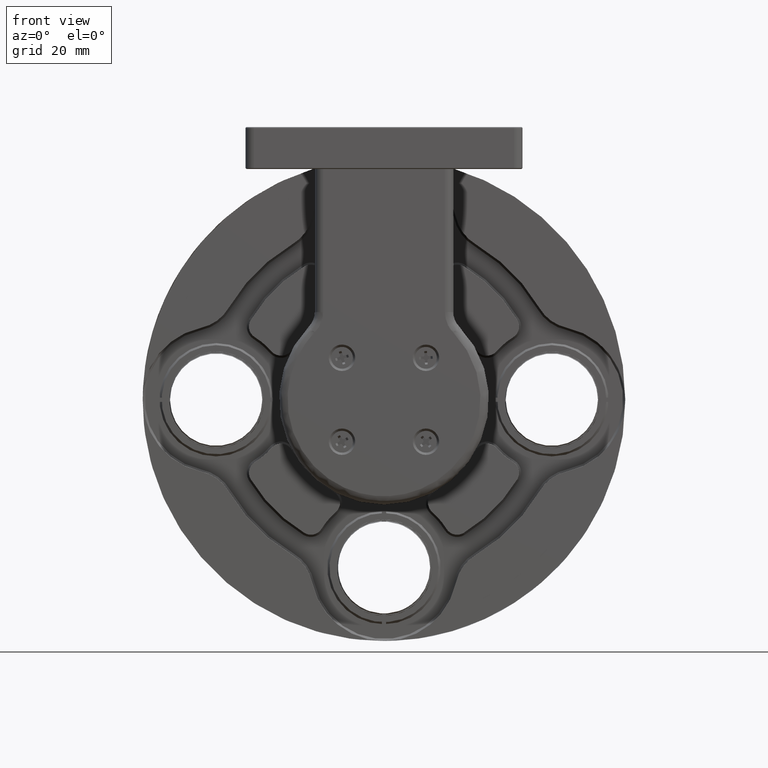
[diagram: clean part render]
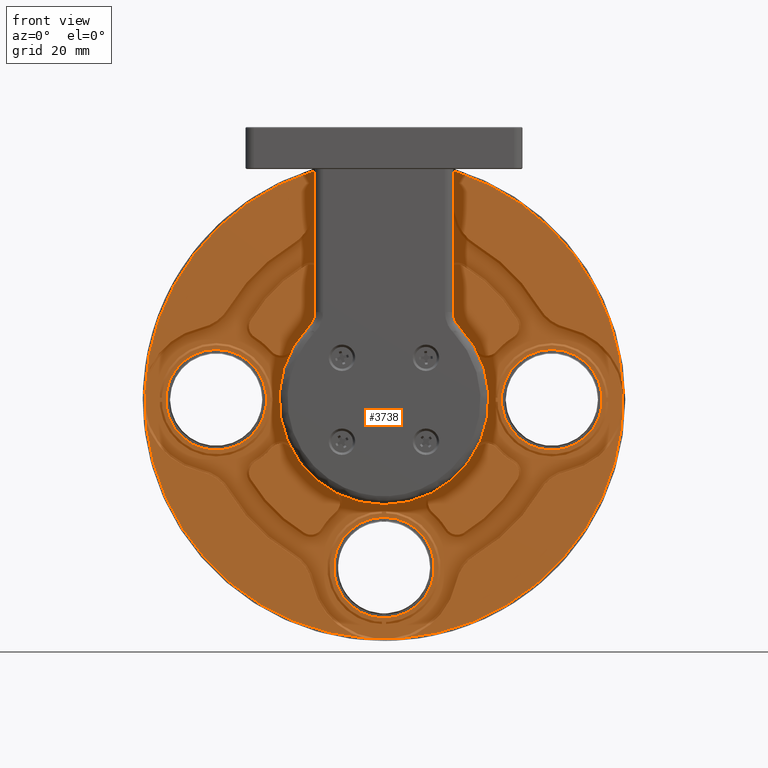
[diagram: same view with one face highlighted and labeled with its STEP entity id]
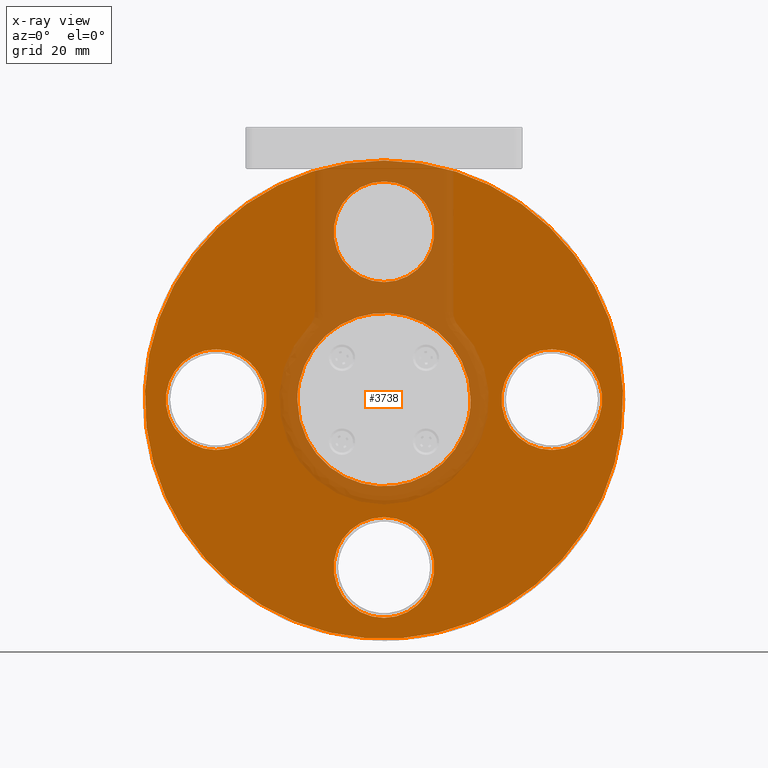
[diagram: x-ray of the same camera — body ghosted, the highlighted face saturated]
A machine part, front view. The second image highlights one B-rep face of the part: STEP entity #3738.
The next image is the same camera in x-ray: the body ghosted, the highlighted face saturated — about 18% of this face is hidden behind the body in this view.
In plain terms, the highlighted planar face has unit normal (-0, 1, 0).
Its self-contained STEP definition (entity closure, byte-faithful):
#80 = CARTESIAN_POINT ( 'NONE',  ( -52.37910232785824149, 31.06348211055967212, 65.58410770328258366 ) ) ;
#82 = CARTESIAN_POINT ( 'NONE',  ( -43.42098259129482329, 31.06348211055968633, 87.33269904637371894 ) ) ;
#167 = CARTESIAN_POINT ( 'NONE',  ( -51.50195343994418806, 31.06348211055968278, 62.67182695956506677 ) ) ;
#169 = CARTESIAN_POINT ( 'NONE',  ( -51.36354743430855052, 31.06348211055967568, 77.68221559721696678 ) ) ;
#249 = CARTESIAN_POINT ( 'NONE',  ( -52.54961922213911407, 31.06348211055967923, 66.51432434059302068 ) ) ;
#251 = CARTESIAN_POINT ( 'NONE',  ( -52.38743229577561067, 31.06348211055967212, 74.33191372698257737 ) ) ;
#277 = VERTEX_POINT ( 'NONE', #8290 ) ;
#344 = CARTESIAN_POINT ( 'NONE',  ( -25.14143976857161533, 31.06348211055967212, 50.59095122842351344 ) ) ;
#347 = CARTESIAN_POINT ( 'NONE',  ( -40.44548976020367803, 31.06348211055968278, 88.94334276734261380 ) ) ;
#413 = ORIENTED_EDGE ( 'NONE', *, *, #12787, .T. ) ;
#436 = CARTESIAN_POINT ( 'NONE',  ( -49.43189447517796964, 31.06348211055967568, 81.37287159087907185 ) ) ;
#619 = CARTESIAN_POINT ( 'NONE',  ( -24.63504569474608985, 31.06348211055967923, 50.78382247998092680 ) ) ;
#650 = EDGE_CURVE ( 'NONE', #14627, #11547, #12902, .T. ) ;
#703 = CARTESIAN_POINT ( 'NONE',  ( -11.54565927654611990, 31.06348211055967568, 70.00000000004308731 ) ) ;
#892 = FACE_BOUND ( 'NONE', #1900, .T. ) ;
#1079 = CARTESIAN_POINT ( 'NONE',  ( -34.86393523643538117, 31.06348211055967568, 90.48124029516232270 ) ) ;
#1160 = PLANE ( 'NONE',  #13934 ) ;
#1167 = CARTESIAN_POINT ( 'NONE',  ( -12.96483231010009973, 31.06348211055968278, 77.52326470838384864 ) ) ;
#1249 = CARTESIAN_POINT ( 'NONE',  ( -13.68442713511874587, 31.06348211055968633, 79.19867723878651589 ) ) ;
#1340 = CARTESIAN_POINT ( 'NONE',  ( -11.88324930447253891, 31.06348211055967568, 73.71871740754845348 ) ) ;
#1406 = CARTESIAN_POINT ( 'NONE',  ( 7.804340723453886852, 31.06348211055967568, 70.00000000008360246 ) ) ;
#1422 = CARTESIAN_POINT ( 'NONE',  ( -50.70689141802483135, 31.06348211055968278, 60.80132276129996427 ) ) ;
#1426 = CARTESIAN_POINT ( 'NONE',  ( -41.39433651544555204, 31.06348211055967212, 88.51123214137186324 ) ) ;
#1505 = CARTESIAN_POINT ( 'NONE',  ( -51.45681931341565019, 31.06348211055967568, 62.55473035221240252 ) ) ;
#1509 = CARTESIAN_POINT ( 'NONE',  ( -45.78959968094930844, 31.06348211055966857, 85.60951709965540601 ) ) ;
#1591 = CARTESIAN_POINT ( 'NONE',  ( -51.13900204394980165, 31.06348211055967923, 61.75016951645639551 ) ) ;
#1594 = CARTESIAN_POINT ( 'NONE',  ( -51.28166679094842095, 31.06348211055966502, 77.88419803250691587 ) ) ;
#1674 = CARTESIAN_POINT ( 'NONE',  ( -27.77976697984040300, 31.06348211055967212, 49.81655694868400275 ) ) ;
#1676 = CARTESIAN_POINT ( 'NONE',  ( -52.49732404954174569, 31.06348211055966857, 73.77694002405294782 ) ) ;
#1717 = CIRCLE ( 'NONE', #17038, 11.99999999999999645 ) ;
#1767 = CARTESIAN_POINT ( 'NONE',  ( -52.14960179288765829, 31.06348211055968633, 64.60988891499198417 ) ) ;
#1770 = CARTESIAN_POINT ( 'NONE',  ( -51.96524392881534737, 31.06348211055966857, 76.03130272879397467 ) ) ;
#1788 = DIRECTION ( 'NONE',  ( -3.017624609044238475E-28, -1.000000000000000000, 1.445602896647339656E-16 ) ) ;
#1856 = CARTESIAN_POINT ( 'NONE',  ( -21.04208804655492315, 31.06348211055967923, 52.62104705646409286 ) ) ;
#1900 = EDGE_LOOP ( 'NONE', ( #4783 ) ) ;
#1937 = EDGE_LOOP ( 'NONE', ( #2494 ) ) ;
#1938 = CARTESIAN_POINT ( 'NONE',  ( -15.61936436537409811, 31.06348211055967212, 57.67613112093980732 ) ) ;
#2117 = CARTESIAN_POINT ( 'NONE',  ( -13.06037709094387189, 31.06348211055966857, 62.23691517990090460 ) ) ;
#2402 = CARTESIAN_POINT ( 'NONE',  ( -12.24171676023502897, 31.06348211055966857, 75.39011108512627857 ) ) ;
#2483 = FACE_BOUND ( 'NONE', #1937, .T. ) ;
#2492 = CARTESIAN_POINT ( 'NONE',  ( -14.58435044487283072, 31.06348211055967212, 80.78515270216342969 ) ) ;
#2494 = ORIENTED_EDGE ( 'NONE', *, *, #11230, .T. ) ;
#2582 = CARTESIAN_POINT ( 'NONE',  ( -11.86565859995081418, 31.06348211055967923, 73.62164177425739808 ) ) ;
#2657 = FACE_BOUND ( 'NONE', #9472, .T. ) ;
#2664 = CARTESIAN_POINT ( 'NONE',  ( -11.58875229432181442, 31.06348211055967568, 71.57471009347500512 ) ) ;
#2743 = CARTESIAN_POINT ( 'NONE',  ( -39.17430035263629406, 31.06348211055966857, 50.55340569435595910 ) ) ;
#2747 = CARTESIAN_POINT ( 'NONE',  ( -11.71444026283427142, 31.06348211055967568, 72.66839097873976527 ) ) ;
#2834 = CARTESIAN_POINT ( 'NONE',  ( -49.66814122724328939, 31.06348211055968278, 58.99349411439198576 ) ) ;
#2837 = CARTESIAN_POINT ( 'NONE',  ( -52.84565927654612238, 31.06348211055967212, 71.26323321395167909 ) ) ;
#2856 = VERTEX_POINT ( 'NONE', #8201 ) ;
#2900 = DIRECTION ( 'NONE',  ( 0.000000000000000000, -1.000000000000000000, 0.000000000000000000 ) ) ;
#2921 = CARTESIAN_POINT ( 'NONE',  ( -29.52738331655619675, 31.06348211055967568, 49.51875970484310585 ) ) ;
#3006 = CARTESIAN_POINT ( 'NONE',  ( -51.79998384957271895, 31.06348211055967568, 63.49660001810040910 ) ) ;
#3096 = CARTESIAN_POINT ( 'NONE',  ( -36.24087926206204457, 31.06348211055967212, 49.74978264791351279 ) ) ;
#3190 = CARTESIAN_POINT ( 'NONE',  ( -14.52992510541154481, 31.06348211055968633, 59.28404006073679966 ) ) ;
#3279 = CARTESIAN_POINT ( 'NONE',  ( -13.22718598571316306, 31.06348211055967212, 61.83453882532784007 ) ) ;
#3738 = ADVANCED_FACE ( 'NONE', ( #5329, #2657, #13076, #2483, #892, #17146 ), #1160, .T. ) ;
#3739 = CARTESIAN_POINT ( 'NONE',  ( -32.82701047997540655, 31.06348211055968278, 90.65001621443843760 ) ) ;
#3824 = CARTESIAN_POINT ( 'NONE',  ( -11.54565927654611990, 31.06348211055967568, 70.00000000004308731 ) ) ;
#3882 = EDGE_CURVE ( 'NONE', #17353, #17353, #1717, .T. ) ;
#3913 = CARTESIAN_POINT ( 'NONE',  ( -14.81670633301440354, 31.06348211055968278, 81.15357122999529338 ) ) ;
#4001 = CARTESIAN_POINT ( 'NONE',  ( -28.39696285378697027, 31.06348211055967923, 90.29760607832922403 ) ) ;
#4081 = CARTESIAN_POINT ( 'NONE',  ( -38.22696200537646405, 31.06348211055966502, 50.23041534773235384 ) ) ;
#4083 = CARTESIAN_POINT ( 'NONE',  ( -29.67973840391180929, 31.06348211055966502, 90.53505283892513944 ) ) ;
#4102 = VERTEX_POINT ( 'NONE', #13624 ) ;
#4165 = CARTESIAN_POINT ( 'NONE',  ( -36.03548859304074625, 31.06348211055967568, 49.71013492866024563 ) ) ;
#4168 = CARTESIAN_POINT ( 'NONE',  ( -44.68847016703465869, 31.06348211055967568, 86.50408947092722656 ) ) ;
#4257 = CARTESIAN_POINT ( 'NONE',  ( -33.45836168342874828, 31.06348211055966502, 49.35003242886855901 ) ) ;
#4259 = CARTESIAN_POINT ( 'NONE',  ( -35.81728248005166648, 31.06348211055967568, 90.33000411266282015 ) ) ;
#4340 = CARTESIAN_POINT ( 'NONE',  ( -28.57403607302433812, 31.06348211055967212, 49.66999588733803250 ) ) ;
#4394 = CARTESIAN_POINT ( 'NONE',  ( -11.54565927654611990, 31.06348211055967568, 70.00000000004308731 ) ) ;
#4428 = CARTESIAN_POINT ( 'NONE',  ( -39.87787487376458273, 31.06348211055967568, 50.83211184223907964 ) ) ;
#4432 = CARTESIAN_POINT ( 'NONE',  ( -52.47382160988637168, 31.06348211055967923, 73.90150216035837616 ) ) ;
#4520 = CARTESIAN_POINT ( 'NONE',  ( -20.97033596179335646, 31.06348211055967212, 52.66730095362948560 ) ) ;
#4522 = CARTESIAN_POINT ( 'NONE',  ( -42.45903504892691416, 31.06348211055968633, 87.92497181243987825 ) ) ;
#4698 = CARTESIAN_POINT ( 'NONE',  ( -14.00407106829386805, 31.06348211055966857, 60.18432186868405154 ) ) ;
#4783 = ORIENTED_EDGE ( 'NONE', *, *, #10927, .T. ) ;
#4875 = CARTESIAN_POINT ( 'NONE',  ( -11.94544192446623221, 31.06348211055967212, 65.95478001446238636 ) ) ;
#5074 = CARTESIAN_POINT ( 'NONE',  ( -30.93295686981691972, 31.06348211055967568, 90.64996757112314185 ) ) ;
#5253 = CARTESIAN_POINT ( 'NONE',  ( -12.93449923968078785, 31.06348211055967212, 77.44526964780384048 ) ) ;
#5329 = FACE_BOUND ( 'NONE', #14688, .T. ) ;
#5337 = CARTESIAN_POINT ( 'NONE',  ( -12.01221622525138599, 31.06348211055967212, 74.41589229678497475 ) ) ;
#5418 = CARTESIAN_POINT ( 'NONE',  ( -43.79209871737196380, 31.06348211055968278, 52.91334437409328473 ) ) ;
#5422 = CARTESIAN_POINT ( 'NONE',  ( -20.82278768567562111, 31.06348211055967568, 87.23623519863687648 ) ) ;
#5502 = CARTESIAN_POINT ( 'NONE',  ( -39.95874409665006510, 31.06348211055967212, 50.86471781439843909 ) ) ;
#5504 = CARTESIAN_POINT ( 'NONE',  ( -48.01452739121162949, 31.06348211055967212, 83.30722901879786946 ) ) ;
#5577 = DIRECTION ( 'NONE',  ( 0.000000000000000000, 0.000000000000000000, -1.000000000000000000 ) ) ;
#5590 = CARTESIAN_POINT ( 'NONE',  ( -35.99435569929946865, 31.06348211055967212, 49.70239392166880066 ) ) ;
#5593 = CARTESIAN_POINT ( 'NONE',  ( -49.13200593556990015, 31.06348211055966857, 81.81695355973161554 ) ) ;
#5677 = CARTESIAN_POINT ( 'NONE',  ( -51.60470804811962608, 31.06348211055967212, 62.94578049201651737 ) ) ;
#5771 = CARTESIAN_POINT ( 'NONE',  ( -24.86748623611599385, 31.06348211055967923, 50.69370583660035123 ) ) ;
#5773 = CARTESIAN_POINT ( 'NONE',  ( -52.48552434788599186, 31.06348211055968278, 73.83982931649205739 ) ) ;
#5858 = CARTESIAN_POINT ( 'NONE',  ( -22.99698203778910965, 31.06348211055967212, 51.48876785854248084 ) ) ;
#5860 = CARTESIAN_POINT ( 'NONE',  ( -39.24987878454015089, 31.06348211055967923, 89.40904877158102693 ) ) ;
#5877 = CARTESIAN_POINT ( 'NONE',  ( -72.19565927654610960, 31.06348211055967568, 69.99999999991607069 ) ) ;
#6039 = CARTESIAN_POINT ( 'NONE',  ( -21.41050657439556204, 31.06348211055967212, 52.38869116831349970 ) ) ;
#6183 = ORIENTED_EDGE ( 'NONE', *, *, #3882, .T. ) ;
#6209 = CARTESIAN_POINT ( 'NONE',  ( -15.25931261749875922, 31.06348211055967568, 58.18304644028667383 ) ) ;
#6411 = CARTESIAN_POINT ( 'NONE',  ( -13.25231650917178960, 31.06348211055968989, 78.24983048359298721 ) ) ;
#6533 = ORIENTED_EDGE ( 'NONE', *, *, #8771, .T. ) ;
#6670 = CARTESIAN_POINT ( 'NONE',  ( -24.51344367932071222, 31.06348211055968278, 89.16788815775747423 ) ) ;
#6706 = AXIS2_PLACEMENT_3D ( 'NONE', #16376, #13640, #13898 ) ;
#6756 = CARTESIAN_POINT ( 'NONE',  ( -12.59133470354234419, 31.06348211055966857, 76.50339998198820979 ) ) ;
#6839 = CARTESIAN_POINT ( 'NONE',  ( -49.80696810824186116, 31.06348211055967568, 59.21484729787433565 ) ) ;
#6841 = CARTESIAN_POINT ( 'NONE',  ( -50.91882415723354427, 31.06348211055967212, 78.72265004525353049 ) ) ;
#6924 = CARTESIAN_POINT ( 'NONE',  ( -44.51952815563753063, 31.06348211055967212, 53.42370508886220648 ) ) ;
#6926 = CARTESIAN_POINT ( 'NONE',  ( -51.16413256738625392, 31.06348211055967212, 78.16546117467854060 ) ) ;
#6948 = VERTEX_POINT ( 'NONE', #7033 ) ;
#6991 = AXIS2_PLACEMENT_3D ( 'NONE', #10831, #2900, #13837 ) ;
#7011 = CARTESIAN_POINT ( 'NONE',  ( -52.67687829025796731, 31.06348211055967212, 67.33160902129279179 ) ) ;
#7033 = CARTESIAN_POINT ( 'NONE',  ( 7.804340723453886852, 31.06348211055967568, 58.00000000008360956 ) ) ;
#7101 = CARTESIAN_POINT ( 'NONE',  ( -26.80554819155855029, 31.06348211055967568, 50.04605748365171536 ) ) ;
#7195 = CARTESIAN_POINT ( 'NONE',  ( -24.67239456817200960, 31.06348211055967212, 50.76917303355134692 ) ) ;
#7197 = CARTESIAN_POINT ( 'NONE',  ( -42.98081197875899306, 31.06348211055967923, 87.61130883164902627 ) ) ;
#7285 = CARTESIAN_POINT ( 'NONE',  ( -12.42607462430658494, 31.06348211055967568, 63.96869727107715420 ) ) ;
#7370 = CARTESIAN_POINT ( 'NONE',  ( -13.01093497763312357, 31.06348211055967568, 62.35993708032054172 ) ) ;
#7464 = CARTESIAN_POINT ( 'NONE',  ( -13.02777111878484817, 31.06348211055967923, 62.31778440278401376 ) ) ;
#7549 = CARTESIAN_POINT ( 'NONE',  ( -11.89399450355049659, 31.06348211055967923, 66.22305997594753535 ) ) ;
#7602 = B_SPLINE_CURVE_WITH_KNOTS ( 'NONE', 3,
 ( #10763, #17508, #16173, #7011, #13689, #249, #9515, #13773, #13601, #16515, #80, #1767, #3006, #5677, #167, #1505, #11197, #8268, #1591, #1422, #16342, #6839, #2834, #16603, #12181, #12270, #16424, #9861, #13951, #6924, #14931, #5418, #15016, #8531, #15280, #12358, #17589, #16260, #9600, #5502, #4428, #10852, #2743, #4081, #8179, #10937, #3096, #8351, #4165, #5590, #15189, #11021, #4257, #9690, #15106, #2921, #12444, #11108, #4340, #9770, #8442, #13860, #1674, #7101, #12536, #344, #5771, #10131, #7195, #619, #16781, #5858, #14128, #6039, #15458, #1856, #4520, #11556, #14386, #15636, #9954, #1938, #6209, #8976, #10040, #11381, #3190, #4698, #14042, #3279, #14216, #2117, #7464, #7370, #10213, #7285, #15369, #12806, #4875, #12892, #16958, #11466, #7549, #8620, #11287, #703 ),
 .UNSPECIFIED., .F., .F.,
 ( 4, 1, 1, 1, 1, 1, 2, 2, 1, 1, 1, 1, 2, 2, 1, 1, 1, 2, 2, 2, 1, 1, 1, 2, 2, 1, 1, 1, 1, 2, 2, 1, 1, 1, 1, 1, 2, 2, 2, 1, 1, 1, 1, 1, 2, 2, 1, 1, 1, 1, 2, 2, 1, 1, 1, 2, 2, 2, 1, 1, 1, 2, 2, 1, 1, 1, 1, 2, 2, 1, 1, 1, 1, 1, 2, 2, 4 ),
 ( 0.000000000000000000, 0.03125000000000240086, 0.04687500000000327516, 0.05468750000000368455, 0.05859375000000387190, 0.06054687500000392741, 0.06152343750000392741, 0.06250000000000392741, 0.09375000000000574540, 0.1093750000000066475, 0.1171875000000073691, 0.1210937500000077161, 0.1230468750000078410, 0.1250000000000079659, 0.1562500000000065503, 0.1718750000000059397, 0.1796875000000056066, 0.1835937500000053846, 0.1875000000000051625, 0.2500000000000039413, 0.2812500000000033307, 0.2968750000000030531, 0.3046875000000030531, 0.3085937500000029976, 0.3125000000000029421, 0.3437500000000010547, 0.3593750000000000555, 0.3671874999999996669, 0.3710937499999996669, 0.3730468749999996114, 0.3749999999999996114, 0.4062499999999957256, 0.4218749999999940048, 0.4296874999999931166, 0.4335937499999925060, 0.4355468749999920619, 0.4365234374999919509, 0.4374999999999918399, 0.4999999999999955591, 0.5312499999999976685, 0.5468749999999985567, 0.5546874999999992228, 0.5585937499999995559, 0.5605468749999997780, 0.5615234374999998890, 0.5624999999999998890, 0.5937500000000016653, 0.6093750000000024425, 0.6171875000000028866, 0.6210937500000032196, 0.6230468750000032196, 0.6250000000000032196, 0.6562500000000023315, 0.6718750000000017764, 0.6796875000000015543, 0.6835937500000015543, 0.6875000000000015543, 0.7499999999999996669, 0.7812499999999988898, 0.7968749999999982236, 0.8046874999999980016, 0.8085937499999980016, 0.8124999999999978906, 0.8437499999999997780, 0.8593750000000006661, 0.8671875000000008882, 0.8710937500000011102, 0.8730468750000011102, 0.8750000000000011102, 0.9062500000000002220, 0.9218749999999997780, 0.9296874999999995559, 0.9335937499999997780, 0.9355468749999998890, 0.9365234375000000000, 0.9375000000000001110, 1.000000000000000000 ),
 .UNSPECIFIED. ) ;
#7740 = DIRECTION ( 'NONE',  ( -3.488278094132890012E-29, 1.000000000000000000, 0.000000000000000000 ) ) ;
#7836 = CARTESIAN_POINT ( 'NONE',  ( -28.15043929099181952, 31.06348211055968633, 90.25021735207343454 ) ) ;
#7923 = CARTESIAN_POINT ( 'NONE',  ( -19.87179039734991903, 31.06348211055967212, 86.57629491105710429 ) ) ;
#8013 = CARTESIAN_POINT ( 'NONE',  ( -26.16435654755195728, 31.06348211055966857, 89.76958465221196093 ) ) ;
#8097 = CARTESIAN_POINT ( 'NONE',  ( -11.79613744236736750, 31.06348211055967568, 73.21353085950286754 ) ) ;
#8179 = CARTESIAN_POINT ( 'NONE',  ( -37.09799285121495416, 31.06348211055966146, 49.93533312788870404 ) ) ;
#8181 = CARTESIAN_POINT ( 'NONE',  ( -43.34923050655704202, 31.06348211055967568, 87.37895294352404107 ) ) ;
#8188 = AXIS2_PLACEMENT_3D ( 'NONE', #1406, #8337, #15003 ) ;
#8201 = CARTESIAN_POINT ( 'NONE',  ( -72.19565927654610960, 31.06348211055967568, 57.99999999991607780 ) ) ;
#8268 = CARTESIAN_POINT ( 'NONE',  ( -51.41183679656442962, 31.06348211055967212, 62.43938641819790547 ) ) ;
#8270 = CARTESIAN_POINT ( 'NONE',  ( -36.61155157327733889, 31.06348211055967568, 90.18344305132191607 ) ) ;
#8290 = CARTESIAN_POINT ( 'NONE',  ( -32.19565927654613091, 31.06348211055967568, 127.0000000000000000 ) ) ;
#8337 = DIRECTION ( 'NONE',  ( -3.017624609044238475E-28, -1.000000000000000000, 1.445602896647339656E-16 ) ) ;
#8351 = CARTESIAN_POINT ( 'NONE',  ( -36.09716143690889112, 31.06348211055967568, 49.72183766665993687 ) ) ;
#8442 = CARTESIAN_POINT ( 'NONE',  ( -28.47694730329126855, 31.06348211055967212, 49.68758902244144338 ) ) ;
#8531 = CARTESIAN_POINT ( 'NONE',  ( -43.56853086742370351, 31.06348211055968278, 52.76376480136661229 ) ) ;
#8534 = CARTESIAN_POINT ( 'NONE',  ( -39.71892398492335730, 31.06348211055966857, 89.23082696644932810 ) ) ;
#8620 = CARTESIAN_POINT ( 'NONE',  ( -11.66057399060941613, 31.06348211055966857, 67.48425444191038025 ) ) ;
#8710 = ORIENTED_EDGE ( 'NONE', *, *, #11632, .T. ) ;
#8771 = EDGE_CURVE ( 'NONE', #277, #277, #13257, .T. ) ;
#8976 = CARTESIAN_POINT ( 'NONE',  ( -15.10900365062739148, 31.06348211055967568, 58.40356055918511657 ) ) ;
#9172 = CARTESIAN_POINT ( 'NONE',  ( -33.77021601155378505, 31.06348211055967568, 90.60693535749155103 ) ) ;
#9261 = CARTESIAN_POINT ( 'NONE',  ( -11.87617935624371412, 31.06348211055967568, 73.67989019094964931 ) ) ;
#9349 = CARTESIAN_POINT ( 'NONE',  ( -21.47969933720616353, 31.06348211055966502, 87.66573417110380717 ) ) ;
#9437 = CARTESIAN_POINT ( 'NONE',  ( -28.41872199178344260, 31.06348211055967568, 90.30166527998019887 ) ) ;
#9472 = EDGE_LOOP ( 'NONE', ( #413 ) ) ;
#9515 = CARTESIAN_POINT ( 'NONE',  ( -52.52565995314142100, 31.06348211055967568, 66.37835822574780309 ) ) ;
#9517 = CARTESIAN_POINT ( 'NONE',  ( -14.27068746406461841, 31.06348211055967923, 80.26337577229604392 ) ) ;
#9600 = CARTESIAN_POINT ( 'NONE',  ( -40.07985730905798505, 31.06348211055968278, 50.91399248560272639 ) ) ;
#9603 = CARTESIAN_POINT ( 'NONE',  ( -48.77195418767769297, 31.06348211055967568, 82.32386887909160578 ) ) ;
#9690 = CARTESIAN_POINT ( 'NONE',  ( -31.56430807304013442, 31.06348211055966502, 49.34998378556567644 ) ) ;
#9692 = CARTESIAN_POINT ( 'NONE',  ( -52.44587662863297339, 31.06348211055967568, 74.04521998550735873 ) ) ;
#9770 = CARTESIAN_POINT ( 'NONE',  ( -28.51577982581454407, 31.06348211055967923, 49.68051809247931772 ) ) ;
#9772 = CARTESIAN_POINT ( 'NONE',  ( -43.20216516220664715, 31.06348211055967923, 87.47248195066902099 ) ) ;
#9861 = CARTESIAN_POINT ( 'NONE',  ( -46.29353327392584561, 31.06348211055968633, 54.89433765489781081 ) ) ;
#9863 = CARTESIAN_POINT ( 'NONE',  ( -52.84565927654612238, 31.06348211055967568, 69.99999999995687006 ) ) ;
#9954 = CARTESIAN_POINT ( 'NONE',  ( -16.37679116182668437, 31.06348211055967923, 56.69277098124398862 ) ) ;
#9957 = CARTESIAN_POINT ( 'NONE',  ( -35.68129899257248638, 31.06348211055967212, 90.35396659604626279 ) ) ;
#10040 = CARTESIAN_POINT ( 'NONE',  ( -15.00968632272985737, 31.06348211055968633, 58.55129545985547423 ) ) ;
#10131 = CARTESIAN_POINT ( 'NONE',  ( -24.75038962876132942, 31.06348211055968278, 50.73883996312955702 ) ) ;
#10213 = CARTESIAN_POINT ( 'NONE',  ( -12.74906497091815361, 31.06348211055967212, 63.02135892385693694 ) ) ;
#10459 = CIRCLE ( 'NONE', #8188, 11.99999999999999645 ) ;
#10499 = CARTESIAN_POINT ( 'NONE',  ( -28.29415711616352169, 31.06348211055967212, 90.27816233333332718 ) ) ;
#10592 = CARTESIAN_POINT ( 'NONE',  ( -14.86296023018170409, 31.06348211055967923, 81.22532331476085687 ) ) ;
#10673 = DIRECTION ( 'NONE',  ( -1.000000000000000000, -3.488278094132890012E-29, 0.000000000000000000 ) ) ;
#10682 = CARTESIAN_POINT ( 'NONE',  ( -23.47300923120279137, 31.06348211055966857, 88.72316488063469819 ) ) ;
#10763 = CARTESIAN_POINT ( 'NONE',  ( -52.84565927654612238, 31.06348211055967568, 69.99999999995687006 ) ) ;
#10765 = CARTESIAN_POINT ( 'NONE',  ( -12.78661050498592644, 31.06348211055967568, 77.05421950803521725 ) ) ;
#10815 = ORIENTED_EDGE ( 'NONE', *, *, #650, .T. ) ;
#10831 = CARTESIAN_POINT ( 'NONE',  ( -32.19565927646255687, 31.06348211055967923, 29.99999999999997868 ) ) ;
#10852 = CARTESIAN_POINT ( 'NONE',  ( -39.83572219622887189, 31.06348211055967923, 50.81527570108799807 ) ) ;
#10854 = CARTESIAN_POINT ( 'NONE',  ( -24.31146124401110598, 31.06348211055967212, 89.08600751438585519 ) ) ;
#10927 = EDGE_CURVE ( 'NONE', #4102, #4102, #17499, .T. ) ;
#10937 = CARTESIAN_POINT ( 'NONE',  ( -36.52757300354461734, 31.06348211055967923, 49.80822698077120236 ) ) ;
#10939 = CARTESIAN_POINT ( 'NONE',  ( -52.49326535487735867, 31.06348211055967568, 73.79869642275205877 ) ) ;
#11021 = CARTESIAN_POINT ( 'NONE',  ( -34.71158014898824007, 31.06348211055967212, 49.46494716106657563 ) ) ;
#11023 = CARTESIAN_POINT ( 'NONE',  ( -51.38038357545804757, 31.06348211055967212, 77.64006291968398443 ) ) ;
#11108 = CARTESIAN_POINT ( 'NONE',  ( -28.71001956048830550, 31.06348211055967568, 49.64603340395540698 ) ) ;
#11131 = DIRECTION ( 'NONE',  ( 0.000000000000000000, 0.000000000000000000, -1.000000000000000000 ) ) ;
#11197 = CARTESIAN_POINT ( 'NONE',  ( -51.42648624299427951, 31.06348211055967568, 62.47673529162442918 ) ) ;
#11199 = CARTESIAN_POINT ( 'NONE',  ( -35.93262270688749282, 31.06348211055967923, 90.30906250799667134 ) ) ;
#11230 = EDGE_CURVE ( 'NONE', #2856, #2856, #12406, .T. ) ;
#11287 = CARTESIAN_POINT ( 'NONE',  ( -11.54565927654611457, 31.06348211055966502, 68.73676678601425749 ) ) ;
#11292 = CARTESIAN_POINT ( 'NONE',  ( -49.28231490245067192, 31.06348211055968278, 81.59643944082588973 ) ) ;
#11381 = CARTESIAN_POINT ( 'NONE',  ( -14.95942407791311624, 31.06348211055967212, 58.62712840911988366 ) ) ;
#11466 = CARTESIAN_POINT ( 'NONE',  ( -11.89805319821594054, 31.06348211055967923, 66.20130357724330850 ) ) ;
#11547 = VERTEX_POINT ( 'NONE', #15824 ) ;
#11556 = CARTESIAN_POINT ( 'NONE',  ( -19.70284838612263911, 31.06348211055967923, 53.49591052902150778 ) ) ;
#11632 = EDGE_CURVE ( 'NONE', #11547, #14627, #7602, .T. ) ;
#11840 = CARTESIAN_POINT ( 'NONE',  ( -25.21701820036232888, 31.06348211055967923, 89.44659430561220859 ) ) ;
#11928 = CARTESIAN_POINT ( 'NONE',  ( -18.09778527908656542, 31.06348211055967568, 85.10566234504067040 ) ) ;
#12020 = CARTESIAN_POINT ( 'NONE',  ( -20.59921983568349191, 31.06348211055967212, 87.08665562587842146 ) ) ;
#12105 = CARTESIAN_POINT ( 'NONE',  ( -27.86374554947596494, 31.06348211055967568, 90.19177301920444734 ) ) ;
#12123 = CARTESIAN_POINT ( 'NONE',  ( -32.19565927662961968, 31.06348211055967212, 97.99999999999998579 ) ) ;
#12181 = CARTESIAN_POINT ( 'NONE',  ( -49.52835832291378182, 31.06348211055967923, 58.77467668524465694 ) ) ;
#12183 = CARTESIAN_POINT ( 'NONE',  ( -18.88843025760876060, 31.06348211055967568, 85.81886811456620023 ) ) ;
#12270 = CARTESIAN_POINT ( 'NONE',  ( -48.69974874757010497, 31.06348211055967923, 57.50718910961740704 ) ) ;
#12275 = CARTESIAN_POINT ( 'NONE',  ( -51.33094146215062636, 31.06348211055967923, 77.76308482010109913 ) ) ;
#12344 = DIRECTION ( 'NONE',  ( 0.000000000000000000, -1.000000000000000000, 0.000000000000000000 ) ) ;
#12358 = CARTESIAN_POINT ( 'NONE',  ( -42.01133740789756388, 31.06348211055967568, 51.80841179175288858 ) ) ;
#12406 = CIRCLE ( 'NONE', #14671, 11.99999999999999645 ) ;
#12444 = CARTESIAN_POINT ( 'NONE',  ( -28.98219551131396088, 31.06348211055966502, 49.60046575164496829 ) ) ;
#12536 = CARTESIAN_POINT ( 'NONE',  ( -25.69225929466190550, 31.06348211055967568, 50.39567542696831737 ) ) ;
#12539 = CARTESIAN_POINT ( 'NONE',  ( -39.64092892433703241, 31.06348211055967568, 89.26116003687184275 ) ) ;
#12629 = CARTESIAN_POINT ( 'NONE',  ( -49.38163223035495264, 31.06348211055968278, 81.44870454015030248 ) ) ;
#12787 = EDGE_CURVE ( 'NONE', #6948, #6948, #10459, .T. ) ;
#12806 = CARTESIAN_POINT ( 'NONE',  ( -12.00388625732961501, 31.06348211055966857, 65.66808627296106238 ) ) ;
#12892 = CARTESIAN_POINT ( 'NONE',  ( -11.91749694320947306, 31.06348211055968633, 66.09849783962603453 ) ) ;
#12902 = B_SPLINE_CURVE_WITH_KNOTS ( 'NONE', 3,
 ( #3824, #17591, #2664, #2747, #8097, #13521, #2582, #9261, #1340, #17245, #5337, #2402, #6756, #10765, #16262, #5253, #1167, #14933, #6411, #1249, #9517, #2492, #14583, #3913, #10592, #13271, #14850, #11928, #12183, #7923, #13351, #12020, #15916, #5422, #9349, #17421, #10682, #14672, #10854, #16093, #6670, #14758, #11840, #8013, #13436, #12105, #7836, #10499, #17511, #4001, #9437, #4083, #5074, #3739, #9172, #1079, #17335, #9957, #4259, #13953, #15371, #11199, #8270, #16344, #15109, #5860, #13862, #12539, #8534, #13691, #347, #1426, #4522, #7197, #9772, #8181, #82, #4168, #1509, #13603, #5504, #9603, #5593, #11292, #12629, #436, #16517, #15193, #6841, #6926, #1594, #12275, #169, #11023, #16605, #1770, #16692, #251, #9692, #4432, #5773, #10939, #1676, #15018, #2837, #9863 ),
 .UNSPECIFIED., .F., .F.,
 ( 4, 1, 1, 1, 1, 1, 2, 2, 1, 1, 1, 1, 2, 2, 1, 1, 1, 2, 2, 2, 1, 1, 1, 2, 2, 1, 1, 1, 1, 2, 2, 1, 1, 1, 1, 1, 2, 2, 2, 1, 1, 1, 1, 1, 2, 2, 1, 1, 1, 1, 2, 2, 1, 1, 1, 2, 2, 2, 1, 1, 1, 2, 2, 1, 1, 1, 1, 2, 2, 1, 1, 1, 1, 1, 2, 2, 4 ),
 ( 0.000000000000000000, 0.03125000000002767925, 0.04687500000004117540, 0.05468750000004793388, 0.05859375000005130618, 0.06054687500005299927, 0.06152343750005350581, 0.06250000000005401235, 0.09375000000005560830, 0.1093750000000564271, 0.1171875000000568295, 0.1210937500000570516, 0.1230468750000574679, 0.1250000000000578981, 0.1562500000000617562, 0.1718750000000634492, 0.1796875000000640044, 0.1835937500000643097, 0.1875000000000645872, 0.2500000000000670020, 0.2812500000000685563, 0.2968750000000695000, 0.3046875000000698330, 0.3085937500000699996, 0.3125000000000701661, 0.3437500000000699996, 0.3593750000000699441, 0.3671875000000699996, 0.3710937500000698885, 0.3730468750000699441, 0.3750000000000699996, 0.4062500000000703881, 0.4218750000000706657, 0.4296875000000708322, 0.4335937500000708322, 0.4355468750000708322, 0.4365234375000707767, 0.4375000000000707767, 0.5000000000000724976, 0.5312500000000734968, 0.5468750000000741629, 0.5546875000000746070, 0.5585937500000746070, 0.5605468750000747180, 0.5615234375000747180, 0.5625000000000747180, 0.5937500000000683897, 0.6093750000000653921, 0.6171875000000637268, 0.6210937500000629496, 0.6230468750000628386, 0.6250000000000626166, 0.6562500000000568434, 0.6718750000000537348, 0.6796875000000524025, 0.6835937500000515143, 0.6875000000000506262, 0.7500000000000391909, 0.7812500000000336398, 0.7968750000000305311, 0.8046875000000287548, 0.8085937500000275335, 0.8125000000000263123, 0.8437500000000144329, 0.8593750000000087708, 0.8671875000000061062, 0.8710937500000052180, 0.8730468750000048850, 0.8750000000000046629, 0.9062500000000107692, 0.9218750000000139888, 0.9296875000000154321, 0.9335937500000158762, 0.9355468750000164313, 0.9365234375000167644, 0.9375000000000169864, 1.000000000000000000 ),
 .UNSPECIFIED. ) ;
#13076 = FACE_BOUND ( 'NONE', #17261, .T. ) ;
#13257 = CIRCLE ( 'NONE', #6706, 57.00000000000000711 ) ;
#13260 = CARTESIAN_POINT ( 'NONE',  ( -32.19565927654613091, 31.06348211055967568, 69.99999999999998579 ) ) ;
#13271 = CARTESIAN_POINT ( 'NONE',  ( -15.69156980547029967, 31.06348211055967568, 82.49281089029396696 ) ) ;
#13351 = CARTESIAN_POINT ( 'NONE',  ( -20.37870571675347264, 31.06348211055967212, 86.93634665898031244 ) ) ;
#13436 = CARTESIAN_POINT ( 'NONE',  ( -27.29332570175441930, 31.06348211055967212, 90.06466687206949473 ) ) ;
#13521 = CARTESIAN_POINT ( 'NONE',  ( -11.84169933095313354, 31.06348211055967568, 73.48567565941712587 ) ) ;
#13601 = CARTESIAN_POINT ( 'NONE',  ( -52.50806924861969804, 31.06348211055967923, 66.28128259245306708 ) ) ;
#13603 = CARTESIAN_POINT ( 'NONE',  ( -47.30132162164355236, 31.06348211055966146, 84.09787399737983549 ) ) ;
#13624 = CARTESIAN_POINT ( 'NONE',  ( -32.19565927646255687, 31.06348211055967923, 17.99999999999998579 ) ) ;
#13640 = DIRECTION ( 'NONE',  ( 0.000000000000000000, 1.000000000000000000, 0.000000000000000000 ) ) ;
#13689 = CARTESIAN_POINT ( 'NONE',  ( -52.59518111072487301, 31.06348211055967568, 66.78646914051607553 ) ) ;
#13691 = CARTESIAN_POINT ( 'NONE',  ( -39.75627285834107738, 31.06348211055966857, 89.21617752002207169 ) ) ;
#13773 = CARTESIAN_POINT ( 'NONE',  ( -52.51513919684853704, 31.06348211055967212, 66.32010980905336339 ) ) ;
#13837 = DIRECTION ( 'NONE',  ( 0.000000000000000000, 0.000000000000000000, -1.000000000000000000 ) ) ;
#13860 = CARTESIAN_POINT ( 'NONE',  ( -28.45869584620396253, 31.06348211055967568, 49.69093749200311549 ) ) ;
#13862 = CARTESIAN_POINT ( 'NONE',  ( -39.52383231698670585, 31.06348211055967212, 89.30629416340205751 ) ) ;
#13898 = DIRECTION ( 'NONE',  ( 0.000000000000000000, 0.000000000000000000, 1.000000000000000000 ) ) ;
#13934 = AXIS2_PLACEMENT_3D ( 'NONE', #13260, #7740, #10673 ) ;
#13951 = CARTESIAN_POINT ( 'NONE',  ( -45.50288829534373747, 31.06348211055967212, 54.18113188532618807 ) ) ;
#13953 = CARTESIAN_POINT ( 'NONE',  ( -35.87553872726830662, 31.06348211055967923, 90.31948190752119388 ) ) ;
#14042 = CARTESIAN_POINT ( 'NONE',  ( -13.47249439587100461, 31.06348211055967568, 61.27734995475741897 ) ) ;
#14128 = CARTESIAN_POINT ( 'NONE',  ( -21.93228350427217066, 31.06348211055967212, 52.07502818749588869 ) ) ;
#14216 = CARTESIAN_POINT ( 'NONE',  ( -13.10965176214764760, 31.06348211055968633, 62.11580196749647342 ) ) ;
#14386 = CARTESIAN_POINT ( 'NONE',  ( -18.60171887220457876, 31.06348211055967568, 54.39048290029666077 ) ) ;
#14583 = CARTESIAN_POINT ( 'NONE',  ( -14.72317732586247807, 31.06348211055967568, 81.00650588563078713 ) ) ;
#14627 = VERTEX_POINT ( 'NONE', #4394 ) ;
#14671 = AXIS2_PLACEMENT_3D ( 'NONE', #5877, #1788, #11131 ) ;
#14672 = CARTESIAN_POINT ( 'NONE',  ( -24.03019810181517713, 31.06348211055967212, 88.96847329080935651 ) ) ;
#14688 = EDGE_LOOP ( 'NONE', ( #10815, #8710 ) ) ;
#14758 = CARTESIAN_POINT ( 'NONE',  ( -24.55559635686921993, 31.06348211055967923, 89.18472429891399145 ) ) ;
#14850 = CARTESIAN_POINT ( 'NONE',  ( -16.58614217705006411, 31.06348211055967568, 83.59394040451665830 ) ) ;
#14931 = CARTESIAN_POINT ( 'NONE',  ( -44.01261283627766119, 31.06348211055967568, 53.06365334097259279 ) ) ;
#14933 = CARTESIAN_POINT ( 'NONE',  ( -12.97948175652599723, 31.06348211055967923, 77.56061358179898946 ) ) ;
#15003 = DIRECTION ( 'NONE',  ( 0.000000000000000000, 0.000000000000000000, -1.000000000000000000 ) ) ;
#15016 = CARTESIAN_POINT ( 'NONE',  ( -43.64436381669641918, 31.06348211055968278, 52.81402704619002719 ) ) ;
#15018 = CARTESIAN_POINT ( 'NONE',  ( -52.73074456248283326, 31.06348211055968633, 72.51574555805551370 ) ) ;
#15106 = CARTESIAN_POINT ( 'NONE',  ( -30.62110254140423748, 31.06348211055966857, 49.39306464251565387 ) ) ;
#15109 = CARTESIAN_POINT ( 'NONE',  ( -38.69905925846378381, 31.06348211055967212, 89.60432457303943465 ) ) ;
#15189 = CARTESIAN_POINT ( 'NONE',  ( -35.97259656131181060, 31.06348211055967212, 49.69833472001992902 ) ) ;
#15193 = CARTESIAN_POINT ( 'NONE',  ( -50.38724748481480731, 31.06348211055967923, 79.81567813133058564 ) ) ;
#15280 = CARTESIAN_POINT ( 'NONE',  ( -42.91161921582959593, 31.06348211055967212, 52.33426582886835376 ) ) ;
#15369 = CARTESIAN_POINT ( 'NONE',  ( -12.13099240445591498, 31.06348211055967568, 65.09766642526176383 ) ) ;
#15371 = CARTESIAN_POINT ( 'NONE',  ( -35.91437124979621132, 31.06348211055967568, 90.31241097755875558 ) ) ;
#15458 = CARTESIAN_POINT ( 'NONE',  ( -21.18915339092312422, 31.06348211055967212, 52.52751804930841217 ) ) ;
#15625 = EDGE_LOOP ( 'NONE', ( #6533 ) ) ;
#15636 = CARTESIAN_POINT ( 'NONE',  ( -17.08999693141786125, 31.06348211055967568, 55.90212600264407428 ) ) ;
#15824 = CARTESIAN_POINT ( 'NONE',  ( -52.84565927654612238, 31.06348211055967568, 69.99999999995687006 ) ) ;
#15916 = CARTESIAN_POINT ( 'NONE',  ( -20.74695473637650522, 31.06348211055966857, 87.18597295379507273 ) ) ;
#16093 = CARTESIAN_POINT ( 'NONE',  ( -24.43257445642858627, 31.06348211055967568, 89.13528218559486049 ) ) ;
#16173 = CARTESIAN_POINT ( 'NONE',  ( -52.80256625877044740, 31.06348211055968278, 68.42528990656843746 ) ) ;
#16260 = CARTESIAN_POINT ( 'NONE',  ( -40.36112045123381620, 31.06348211055967212, 51.03152670916929878 ) ) ;
#16262 = CARTESIAN_POINT ( 'NONE',  ( -12.88936511315521294, 31.06348211055967212, 77.32817304046264439 ) ) ;
#16342 = CARTESIAN_POINT ( 'NONE',  ( -50.12063108906612996, 31.06348211055967568, 59.73662422776875047 ) ) ;
#16344 = CARTESIAN_POINT ( 'NONE',  ( -37.58577036157829809, 31.06348211055966857, 89.95394251635865146 ) ) ;
#16376 = CARTESIAN_POINT ( 'NONE',  ( -32.19565927654613091, 31.06348211055967568, 69.99999999999998579 ) ) ;
#16412 = CARTESIAN_POINT ( 'NONE',  ( -32.19565927662961968, 31.06348211055967212, 109.9999999999999858 ) ) ;
#16424 = CARTESIAN_POINT ( 'NONE',  ( -47.80517637620184246, 31.06348211055967923, 56.40605959560625848 ) ) ;
#16515 = CARTESIAN_POINT ( 'NONE',  ( -52.50472178454310779, 31.06348211055967568, 66.26303656965818334 ) ) ;
#16517 = CARTESIAN_POINT ( 'NONE',  ( -49.86139344769009796, 31.06348211055967212, 80.71595993927157053 ) ) ;
#16603 = CARTESIAN_POINT ( 'NONE',  ( -49.57461222008492996, 31.06348211055967923, 58.84642877001665084 ) ) ;
#16605 = CARTESIAN_POINT ( 'NONE',  ( -51.64225358219107420, 31.06348211055967212, 76.97864107606936557 ) ) ;
#16692 = CARTESIAN_POINT ( 'NONE',  ( -52.26032614865857795, 31.06348211055967212, 74.90233357464154551 ) ) ;
#16781 = CARTESIAN_POINT ( 'NONE',  ( -23.94582879296996225, 31.06348211055967212, 51.05665723260844402 ) ) ;
#16958 = CARTESIAN_POINT ( 'NONE',  ( -11.90579420520835718, 31.06348211055966857, 66.16017068349889030 ) ) ;
#17038 = AXIS2_PLACEMENT_3D ( 'NONE', #16412, #12344, #5577 ) ;
#17146 = FACE_OUTER_BOUND ( 'NONE', #15625, .T. ) ;
#17245 = CARTESIAN_POINT ( 'NONE',  ( -11.88659676854859448, 31.06348211055967568, 73.73696343033964240 ) ) ;
#17261 = EDGE_LOOP ( 'NONE', ( #6183 ) ) ;
#17335 = CARTESIAN_POINT ( 'NONE',  ( -35.40912304171954617, 31.06348211055966857, 90.39953424835813678 ) ) ;
#17353 = VERTEX_POINT ( 'NONE', #12123 ) ;
#17421 = CARTESIAN_POINT ( 'NONE',  ( -22.37998114509583658, 31.06348211055967568, 88.19158820819835398 ) ) ;
#17499 = CIRCLE ( 'NONE', #6991, 11.99999999999999289 ) ;
#17508 = CARTESIAN_POINT ( 'NONE',  ( -52.84565927654612949, 31.06348211055968278, 69.36856116318564602 ) ) ;
#17511 = CARTESIAN_POINT ( 'NONE',  ( -28.35582996004005452, 31.06348211055968633, 90.28986507133585349 ) ) ;
#17589 = CARTESIAN_POINT ( 'NONE',  ( -40.91830932181530756, 31.06348211055966857, 51.27683511932874438 ) ) ;
#17591 = CARTESIAN_POINT ( 'NONE',  ( -11.54565927654612345, 31.06348211055968989, 70.63143883683920876 ) ) ;